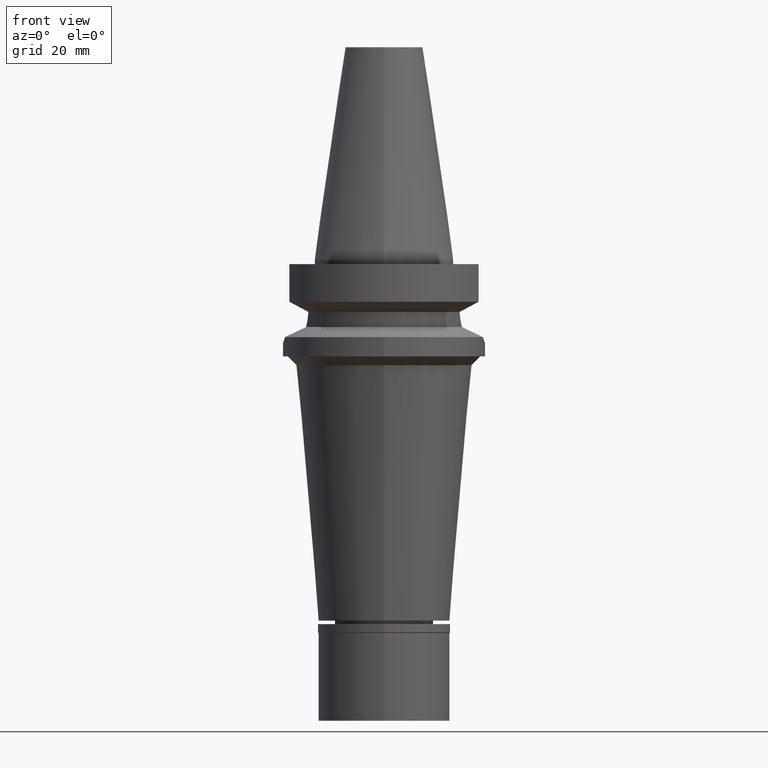
[diagram: clean part render]
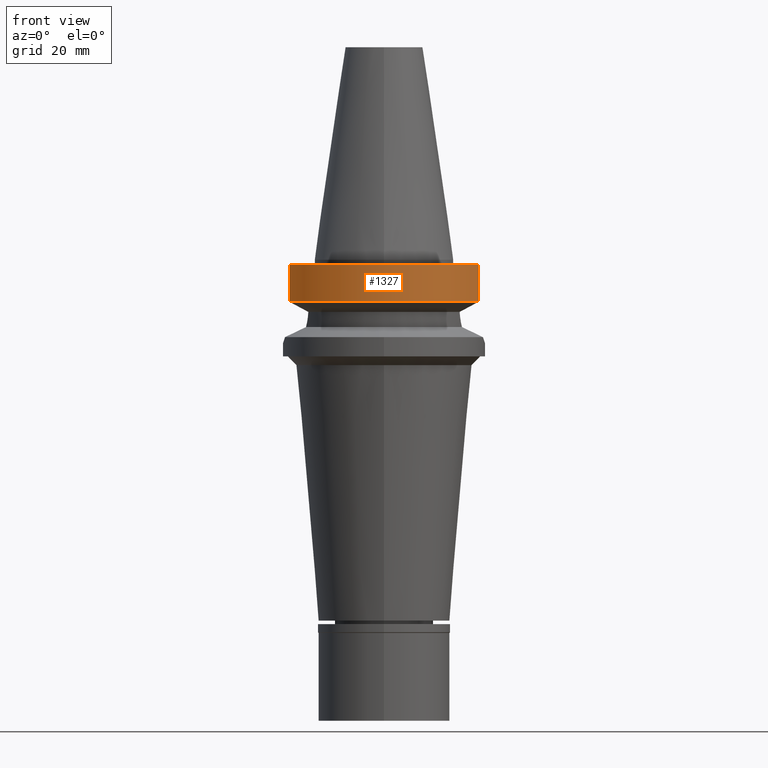
[diagram: same view with one face highlighted and labeled with its STEP entity id]
A machine part, front view. The second image highlights one B-rep face of the part: STEP entity #1327.
In plain terms, the highlighted cylindrical surface (partial cylindrical patch) has radius 23 mm, axis along (0, 0, -1).
Its self-contained STEP definition (entity closure, byte-faithful):
#81 = VERTEX_POINT ( 'NONE', #1869 ) ;
#160 = VECTOR ( 'NONE', #2115, 1000.000000000000114 ) ;
#394 = VERTEX_POINT ( 'NONE', #1124 ) ;
#398 = CARTESIAN_POINT ( 'NONE',  ( 0.0000000000000000000, 0.0000000000000000000, -1.000000000000000000 ) ) ;
#429 = LINE ( 'NONE', #1144, #160 ) ;
#478 = CARTESIAN_POINT ( 'NONE',  ( 21.54524309446999908, -8.050000000000000711, -1.000000000000000000 ) ) ;
#576 = VERTEX_POINT ( 'NONE', #2841 ) ;
#707 = CIRCLE ( 'NONE', #2568, 23.00000000000000000 ) ;
#708 = ORIENTED_EDGE ( 'NONE', *, *, #1658, .F. ) ;
#734 = FACE_OUTER_BOUND ( 'NONE', #1657, .T. ) ;
#799 = ORIENTED_EDGE ( 'NONE', *, *, #2685, .T. ) ;
#876 = DIRECTION ( 'NONE',  ( 0.0000000000000000000, -1.000000000000000000, 0.0000000000000000000 ) ) ;
#942 = DIRECTION ( 'NONE',  ( 0.0000000000000000000, 0.0000000000000000000, -1.000000000000000000 ) ) ;
#944 = EDGE_CURVE ( 'NONE', #81, #394, #1222, .T. ) ;
#1007 = DIRECTION ( 'NONE',  ( 1.843191754168992707E-08, -4.933165888406983159E-08, 0.9999999999999985567 ) ) ;
#1028 = AXIS2_PLACEMENT_3D ( 'NONE', #2616, #942, #1872 ) ;
#1124 = CARTESIAN_POINT ( 'NONE',  ( -21.54524309446999908, -8.050000000000000711, -1.000000000000000000 ) ) ;
#1129 = DIRECTION ( 'NONE',  ( 0.0000000000000000000, -1.000000000000000000, 0.0000000000000000000 ) ) ;
#1144 = CARTESIAN_POINT ( 'NONE',  ( 21.54524309446999908, -8.050000000000000711, -1.000000000000000000 ) ) ;
#1222 = LINE ( 'NONE', #2170, #2180 ) ;
#1327 = ADVANCED_FACE ( 'NONE', ( #734 ), #1630, .T. ) ;
#1391 = DIRECTION ( 'NONE',  ( 0.0000000000000000000, 0.0000000000000000000, -1.000000000000000000 ) ) ;
#1630 = CYLINDRICAL_SURFACE ( 'NONE', #1028, 23.00000000000000000 ) ;
#1657 = EDGE_LOOP ( 'NONE', ( #2809, #1868, #708, #799 ) ) ;
#1658 = EDGE_CURVE ( 'NONE', #1701, #576, #429, .T. ) ;
#1701 = VERTEX_POINT ( 'NONE', #478 ) ;
#1764 = DIRECTION ( 'NONE',  ( 0.0000000000000000000, 0.0000000000000000000, 1.000000000000000000 ) ) ;
#1868 = ORIENTED_EDGE ( 'NONE', *, *, #2354, .T. ) ;
#1869 = CARTESIAN_POINT ( 'NONE',  ( -21.54524325238000060, -8.049999577366000025, -9.567211146628999074 ) ) ;
#1872 = DIRECTION ( 'NONE',  ( 0.0000000000000000000, -1.000000000000000000, 0.0000000000000000000 ) ) ;
#2115 = DIRECTION ( 'NONE',  ( -9.134702132273689133E-08, -2.444836106403914732E-07, -0.9999999999999659162 ) ) ;
#2170 = CARTESIAN_POINT ( 'NONE',  ( -21.54524325238000060, -8.049999577366000025, -9.567211146628999074 ) ) ;
#2180 = VECTOR ( 'NONE', #1007, 1000.000000000000114 ) ;
#2285 = CARTESIAN_POINT ( 'NONE',  ( 0.0000000000000000000, 0.0000000000000000000, -9.567208369710998639 ) ) ;
#2354 = EDGE_CURVE ( 'NONE', #81, #576, #2661, .T. ) ;
#2568 = AXIS2_PLACEMENT_3D ( 'NONE', #398, #1391, #1129 ) ;
#2616 = CARTESIAN_POINT ( 'NONE',  ( 0.0000000000000000000, 0.0000000000000000000, 0.0000000000000000000 ) ) ;
#2661 = CIRCLE ( 'NONE', #2913, 23.00000000000000000 ) ;
#2685 = EDGE_CURVE ( 'NONE', #1701, #394, #707, .T. ) ;
#2809 = ORIENTED_EDGE ( 'NONE', *, *, #944, .F. ) ;
#2841 = CARTESIAN_POINT ( 'NONE',  ( 21.54524309446999908, -8.050000000002000888, -9.567208369710998639 ) ) ;
#2913 = AXIS2_PLACEMENT_3D ( 'NONE', #2285, #1764, #876 ) ;